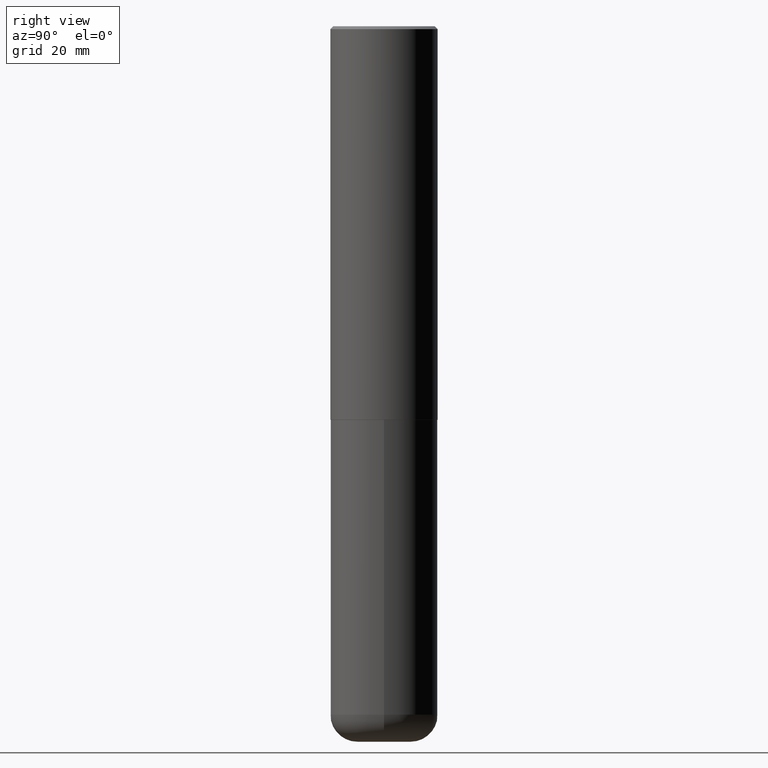
[diagram: clean part render]
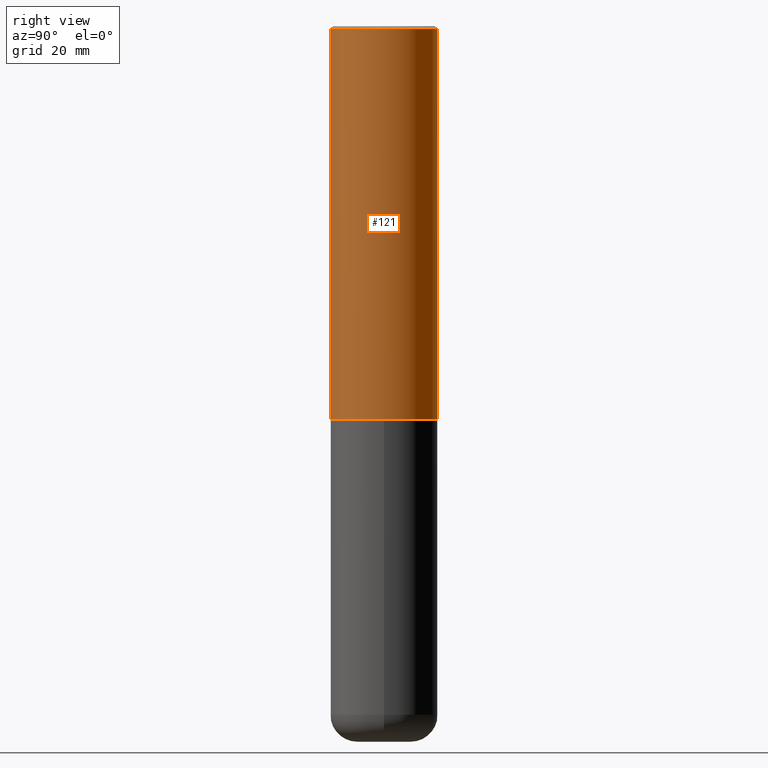
[diagram: same view with one face highlighted and labeled with its STEP entity id]
A machine part, right view. The second image highlights one B-rep face of the part: STEP entity #121.
In plain terms, the highlighted cylindrical surface (partial cylindrical patch) has radius 9.525 mm, axis along (-0, 0, 1).
Its self-contained STEP definition (entity closure, byte-faithful):
#1 = AXIS2_PLACEMENT_3D ( 'NONE', #125, #413, #289 ) ;
#11 = DIRECTION ( 'NONE',  ( -2.446040391741596606E-29, 3.490662795793665557E-15, 1.000000000000000000 ) ) ;
#24 = CARTESIAN_POINT ( 'NONE',  ( -2.618611004132351594E-15, -0.3750000000000002220, 1.308998548422625521E-15 ) ) ;
#32 = LINE ( 'NONE', #24, #295 ) ;
#34 = CARTESIAN_POINT ( 'NONE',  ( -2.572686749164323547E-15, -0.3750000000000001110, -0.01999999999999877570 ) ) ;
#42 = ORIENTED_EDGE ( 'NONE', *, *, #333, .F. ) ;
#55 = VERTEX_POINT ( 'NONE', #299 ) ;
#88 = ORIENTED_EDGE ( 'NONE', *, *, #215, .T. ) ;
#91 = CIRCLE ( 'NONE', #377, 0.3750000000000003886 ) ;
#112 = EDGE_LOOP ( 'NONE', ( #88, #285, #120, #42 ) ) ;
#119 = DIRECTION ( 'NONE',  ( -2.446040391741596606E-29, 3.490662795793665557E-15, 1.000000000000000000 ) ) ;
#120 = ORIENTED_EDGE ( 'NONE', *, *, #358, .F. ) ;
#121 = ADVANCED_FACE ( 'NONE', ( #134 ), #396, .T. ) ;
#125 = CARTESIAN_POINT ( 'NONE',  ( 4.892080783483214581E-31, -6.981325591587361238E-17, -0.02000000000000008715 ) ) ;
#134 = FACE_OUTER_BOUND ( 'NONE', #112, .T. ) ;
#178 = DIRECTION ( 'NONE',  ( -2.446040391741596606E-29, 3.490662795793665557E-15, 1.000000000000000000 ) ) ;
#190 = CARTESIAN_POINT ( 'NONE',  ( 2.664535259100376880E-15, 0.3750000000000002220, -1.308998548422625521E-15 ) ) ;
#209 = CARTESIAN_POINT ( 'NONE',  ( 6.724165036897648492E-29, -9.595832025636787455E-15, -2.749000000000000110 ) ) ;
#215 = EDGE_CURVE ( 'NONE', #219, #55, #91, .T. ) ;
#219 = VERTEX_POINT ( 'NONE', #300 ) ;
#228 = LINE ( 'NONE', #190, #261 ) ;
#239 = CARTESIAN_POINT ( 'NONE',  ( 0.000000000000000000, 0.000000000000000000, 0.000000000000000000 ) ) ;
#243 = DIRECTION ( 'NONE',  ( -6.982962677686266711E-15, -1.000000000000000000, 3.490662795793665951E-15 ) ) ;
#261 = VECTOR ( 'NONE', #323, 39.37007874015748143 ) ;
#277 = CIRCLE ( 'NONE', #1, 0.3750000000000000555 ) ;
#278 = DIRECTION ( 'NONE',  ( -6.982962677686265922E-15, -1.000000000000000000, 2.913971193241877611E-15 ) ) ;
#285 = ORIENTED_EDGE ( 'NONE', *, *, #418, .T. ) ;
#289 = DIRECTION ( 'NONE',  ( -6.982962677686265922E-15, -1.000000000000000000, 3.494488891895536035E-15 ) ) ;
#293 = AXIS2_PLACEMENT_3D ( 'NONE', #239, #11, #243 ) ;
#295 = VECTOR ( 'NONE', #119, 39.37007874015748143 ) ;
#299 = CARTESIAN_POINT ( 'NONE',  ( 2.664535259100411196E-15, 0.3749999999999907296, -2.749000000000000998 ) ) ;
#300 = CARTESIAN_POINT ( 'NONE',  ( -2.618611004132284935E-15, -0.3750000000000099920, -2.748999999999999222 ) ) ;
#323 = DIRECTION ( 'NONE',  ( -2.446040391741596606E-29, 3.490662795793665557E-15, 1.000000000000000000 ) ) ;
#333 = EDGE_CURVE ( 'NONE', #219, #410, #32, .T. ) ;
#355 = CARTESIAN_POINT ( 'NONE',  ( 2.618611004132350411E-15, 0.3749999999999999445, -0.02000000000000139513 ) ) ;
#358 = EDGE_CURVE ( 'NONE', #410, #375, #277, .T. ) ;
#375 = VERTEX_POINT ( 'NONE', #355 ) ;
#377 = AXIS2_PLACEMENT_3D ( 'NONE', #209, #178, #278 ) ;
#396 = CYLINDRICAL_SURFACE ( 'NONE', #293, 0.3750000000000002220 ) ;
#410 = VERTEX_POINT ( 'NONE', #34 ) ;
#413 = DIRECTION ( 'NONE',  ( -2.446040391741596606E-29, 3.490662795793665557E-15, 1.000000000000000000 ) ) ;
#418 = EDGE_CURVE ( 'NONE', #55, #375, #228, .T. ) ;